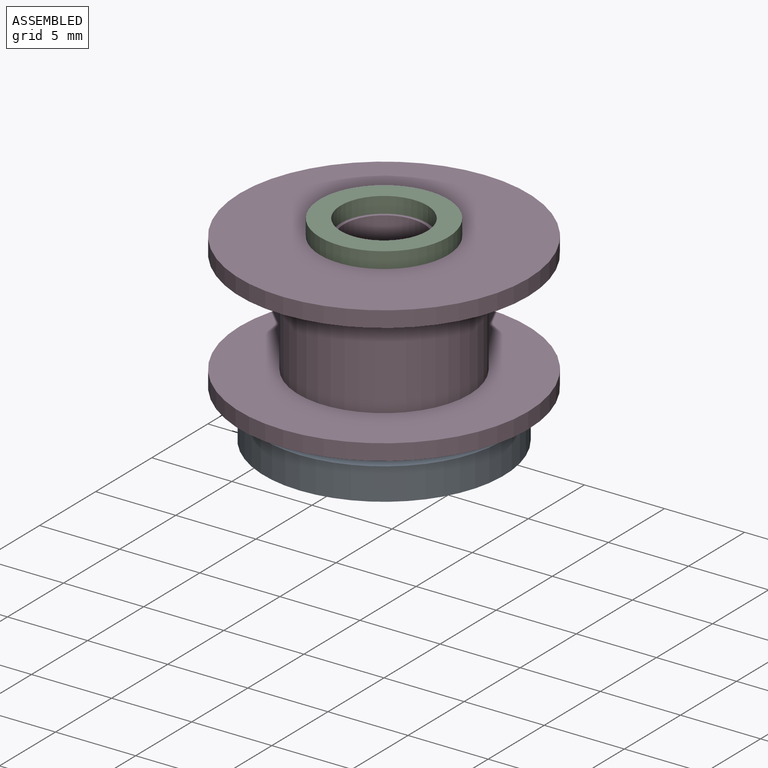
[diagram: assembled view]
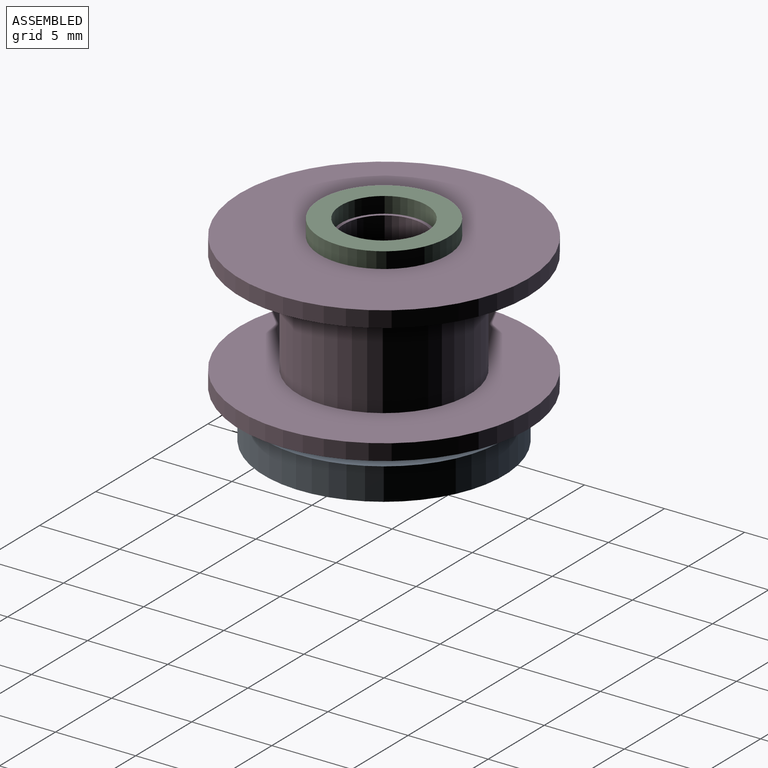
[diagram: assembled view, second angle]
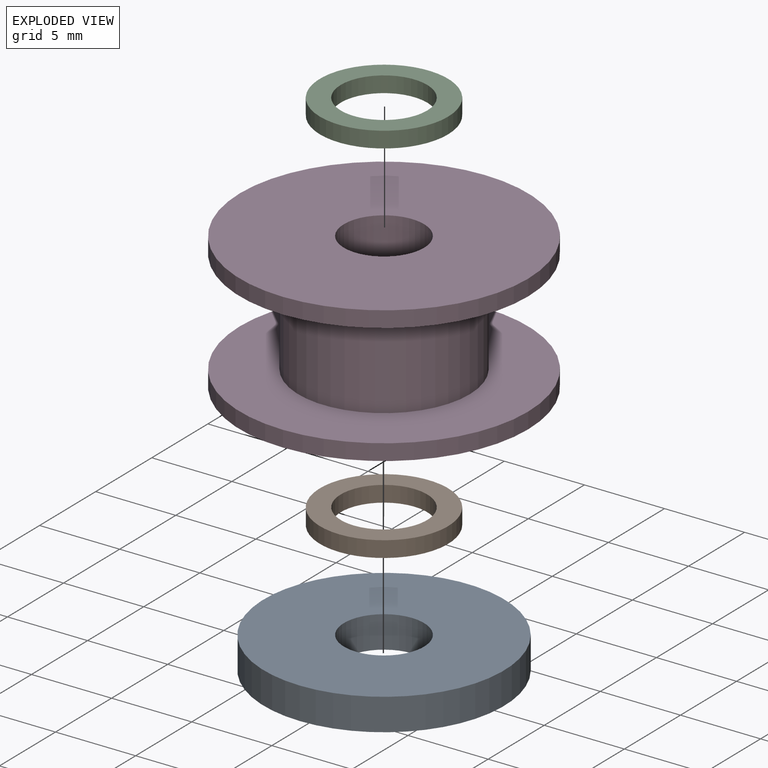
[diagram: exploded view]
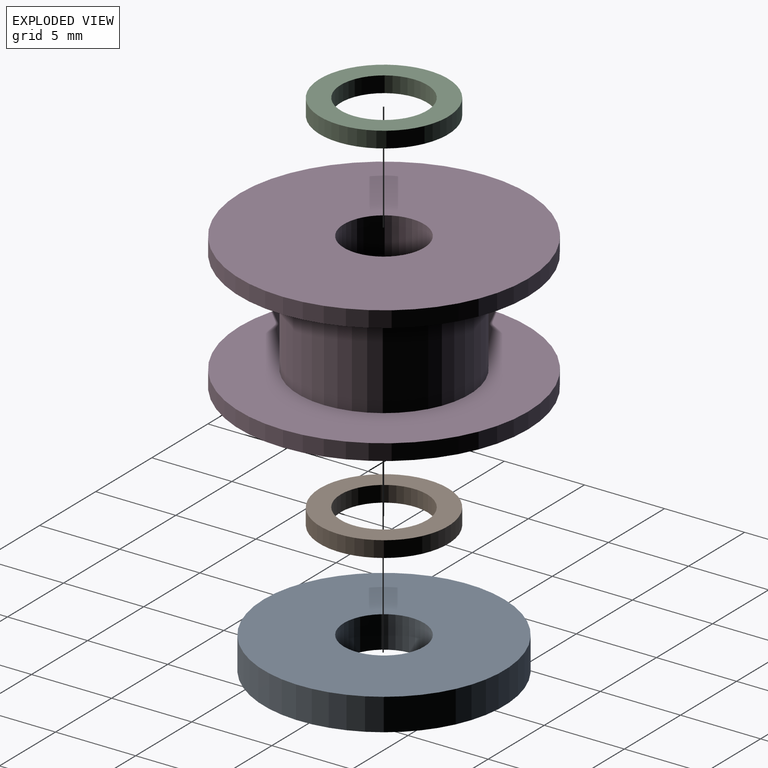
[diagram: exploded view, second angle]
ASSEMBLY  parts=4 mates=3
PART A: 4 faces, bbox 15x15x2 mm
  f0: cylinder r=2.5mm len=5mm, axis (0,0,-1), area 31.4mm2, adj f2,f3
  f1: cylinder r=7.5mm len=15mm, axis (0,0,-1), area 94.2mm2, adj f2,f3
  f2: plane 15x15mm, normal (0,0,1), area 157.1mm2, adj f0,f1
  f3: plane 15x15mm, normal (0,0,-1), area 157.1mm2, adj f0,f1
PART B: 4 faces, bbox 8x8x1 mm
  f0: cylinder r=2.7mm len=5.4mm, axis (0,0,-1), area 17mm2, adj f2,f3
  f1: cylinder r=4mm len=8mm, axis (0,0,-1), area 25.1mm2, adj f2,f3
  f2: plane 8x8mm, normal (0,0,1), area 27.4mm2, adj f0,f1
  f3: plane 8x8mm, normal (0,0,-1), area 27.4mm2, adj f0,f1
PART C: same geometry as B
PART D: 8 faces, bbox 18x18x8.5 mm
  f0: cylinder r=2.5mm len=8.5mm, axis (0,0,1), area 133.5mm2, adj f1,f7
  f1: plane 18x18mm, normal (0,0,1), area 234.8mm2, adj f0,f2
  f2: cylinder r=9mm len=18mm, axis (0,0,1), area 56.5mm2, adj f1,f3
  f3: plane 18x18mm, normal (0,0,-1), area 164.5mm2, adj f2,f4
  f4: cylinder r=5.35mm len=10.7mm, axis (0,0,1), area 218.5mm2, adj f3,f5
  f5: plane 18x18mm, normal (0,0,1), area 164.5mm2, adj f4,f6
  f6: cylinder r=9mm len=18mm, axis (0,0,1), area 56.5mm2, adj f5,f7
  f7: plane 18x18mm, normal (0,0,-1), area 234.8mm2, adj f0,f6
PLACE A rot(axis=(0,0,-1),90deg) t=(0,0,2.5)mm
PLACE B rot(axis=(0,0,-1),90deg) t=(0,0,4.5)mm
PLACE C t=(0,0,14)mm
PLACE D t=(0,0,9.75)mm
MATE fastened B.f1 <-> D.f0  axis (0,0,1) through (0,0,5.5)mm
MATE fastened A.f1 <-> B.f1  axis (0,0,1) through (0,0,4.5)mm
MATE fastened D.f0 <-> C.f1  axis (0,0,1) through (0,0,14)mm
